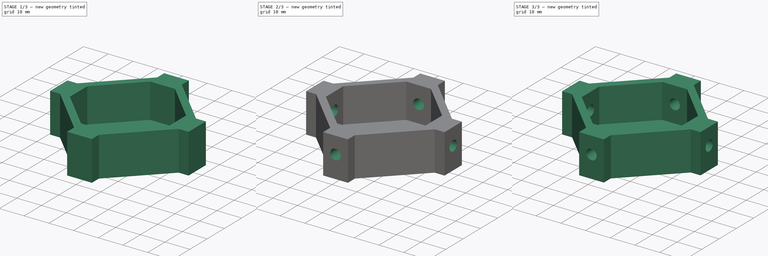
[diagram: build sequence overview — one tinted view per stage of 3, left to right]
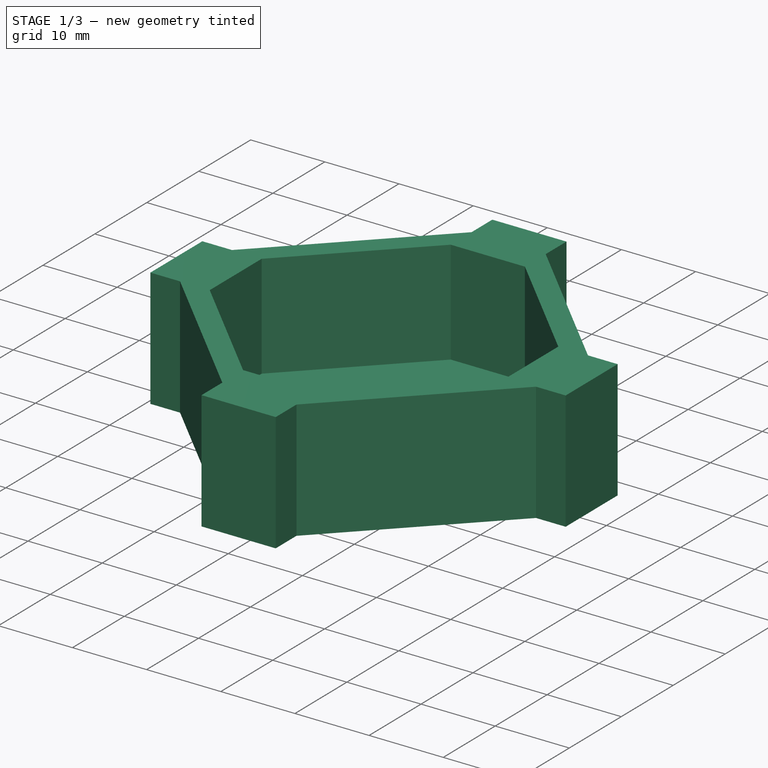
[diagram: stage 1 of 3 — iso view after this stage's code; geometry added in this stage tinted green]
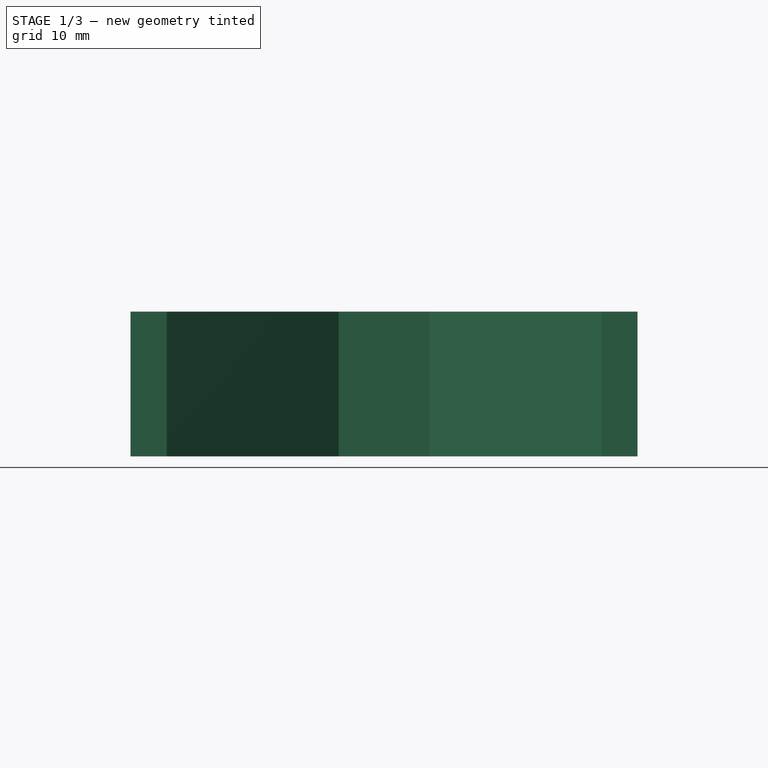
[diagram: stage 1 of 3 — front view after this stage's code; geometry added in this stage tinted green]
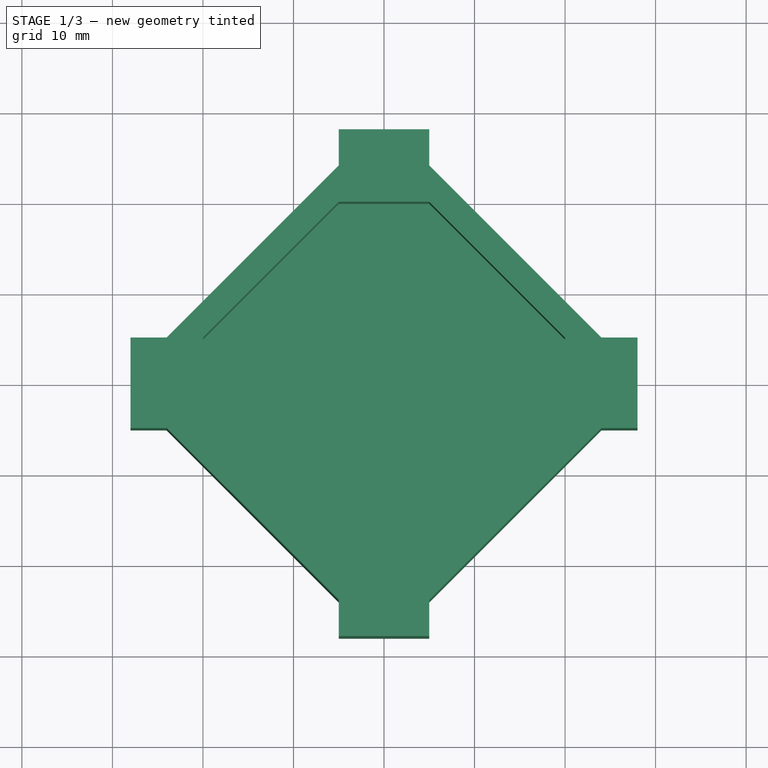
[diagram: stage 1 of 3 — top view after this stage's code; geometry added in this stage tinted green]
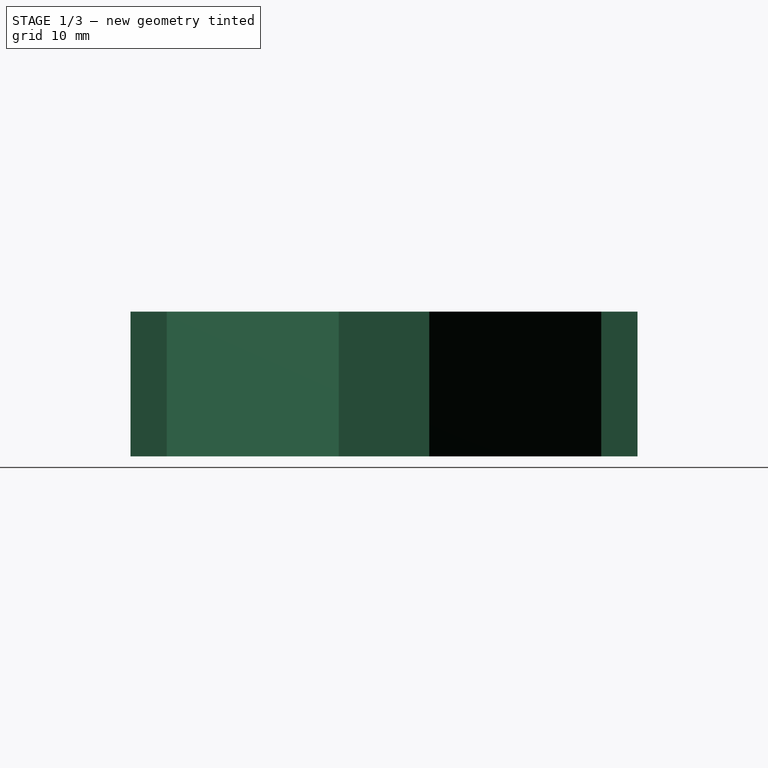
[diagram: stage 1 of 3 — right view after this stage's code; geometry added in this stage tinted green]
FCSTD DOCUMENT  (FreeCAD 0.18R16131 (Git))
Label: Turnstile_V3.3
License: All rights reserved
LicenseURL: http://en.wikipedia.org/wiki/All_rights_reserved
objects: Sketcher::SketchObject×4, PartDesign::Pocket×3, PartDesign::Fillet×3, PartDesign::Pad×1, PartDesign::Body×1, App::Part×1
note: 16 computed .brp shape members not serialized (recipe doc carries the construction recipe); baked Part::Feature solids carry a one-line shape summary decoded from their .brp

FEATURE [Sketcher::SketchObject] Sketch  label="contour"
  MapMode = 5
  Support = -> [XY_Plane001]
  sketch-geometry (16):
    g0: LineSegment StartX=-5 StartY=28 StartZ=0 EndX=5 EndY=28 EndZ=0
    g1: LineSegment StartX=28 StartY=5 StartZ=0 EndX=28 EndY=-5 EndZ=0
    g2: LineSegment StartX=5 StartY=-28 StartZ=0 EndX=-5 EndY=-28 EndZ=0
    g3: LineSegment StartX=-28 StartY=-5 StartZ=0 EndX=-28 EndY=5 EndZ=0
    g4: LineSegment StartX=-28 StartY=5 StartZ=0 EndX=-24 EndY=5 EndZ=0
    g5: LineSegment StartX=-24 StartY=5 StartZ=0 EndX=-5 EndY=24 EndZ=0
    g6: LineSegment StartX=-5 StartY=24 StartZ=0 EndX=-5 EndY=28 EndZ=0
    g7: LineSegment StartX=5 StartY=28 StartZ=0 EndX=5 EndY=24 EndZ=0
    g8: LineSegment StartX=5 StartY=24 StartZ=0 EndX=24 EndY=5 EndZ=0
    g9: LineSegment StartX=24 StartY=5 StartZ=0 EndX=28 EndY=5 EndZ=0
    g10: LineSegment StartX=-28 StartY=-5 StartZ=0 EndX=-24 EndY=-5 EndZ=0
    g11: LineSegment StartX=-24 StartY=-5 StartZ=0 EndX=-5 EndY=-24 EndZ=0
    g12: LineSegment StartX=-5 StartY=-24 StartZ=0 EndX=-5 EndY=-28 EndZ=0
    g13: LineSegment StartX=5 StartY=-28 StartZ=0 EndX=5 EndY=-24 EndZ=0
    g14: LineSegment StartX=5 StartY=-24 StartZ=0 EndX=24 EndY=-5 EndZ=0
    g15: LineSegment StartX=24 StartY=-5 StartZ=0 EndX=28 EndY=-5 EndZ=0
  constraints (44):
    c: Symmetric(g0,g0,g-2)
    c: Symmetric(g2,g2,g-2)
    c: Symmetric(g3,g3,g-1)
    c: Symmetric(g1,g1,g-1)
    c: DistanceY(g-1,g0) = 28
    c: DistanceY(g2,g-1) = 28
    c: DistanceX(g3,g-1) = 28
    c: DistanceX(g-1,g1) = 28
    c: DistanceX(g0,g0) = 10
    c: DistanceX(g2,g2) = 10
    c: DistanceY(g3,g3) = 10
    c: DistanceY(g1,g1) = 10
    c: Coincident(g4,g5)
    c: Coincident(g5,g6)
    c: Coincident(g3,g4)
    c: Coincident(g0,g6)
    c: Vertical(g6)
    c: Horizontal(g4)
    c: DistanceX(g4,g4) = 4
    c: DistanceY(g6,g6) = 4
    c: Coincident(g7,g8)
    c: Coincident(g8,g9)
    c: Coincident(g7,g0)
    c: Horizontal(g9)
    c: Vertical(g7)
    c: DistanceX(g9,g9) = 4
    c: DistanceY(g7,g7) = 4
    c: Coincident(g9,g1)
    c: Coincident(g10,g11)
    c: Coincident(g11,g12)
    c: Coincident(g10,g3)
    c: Coincident(g12,g2)
    c: Horizontal(g10)
    c: Vertical(g12)
    c: DistanceX(g10,g10) = 4
    c: DistanceY(g12,g12) = 4
    c: Coincident(g13,g14)
    c: Coincident(g14,g15)
    c: Coincident(g1,g15)
    c: Coincident(g13,g2)
    c: Vertical(g13)
    c: Horizontal(g15)
    c: DistanceX(g15,g15) = 4
    c: DistanceY(g13,g13) = 4
FEATURE [PartDesign::Pad] Pad
  Length = 16
  Length2 = 100
  Profile = -> Sketch
  Type = 0
FEATURE [Sketcher::SketchObject] Sketch001
  MapMode = 5
  Placement = pos=(0,0,16) rot=(0,0,1;0rad)
  Support = -> [Pad]
  sketch-geometry (8):
    g0: LineSegment StartX=5 StartY=20 StartZ=0 EndX=-5 EndY=20 EndZ=0
    g1: LineSegment StartX=-5 StartY=20 StartZ=0 EndX=-20 EndY=5 EndZ=0
    g2: LineSegment StartX=-20 StartY=5 StartZ=0 EndX=-20 EndY=-5 EndZ=0
    g3: LineSegment StartX=-20 StartY=-5 StartZ=0 EndX=-5 EndY=-20 EndZ=0
    g4: LineSegment StartX=-5 StartY=-20 StartZ=0 EndX=5 EndY=-20 EndZ=0
    g5: LineSegment StartX=5 StartY=-20 StartZ=0 EndX=20 EndY=-5 EndZ=0
    g6: LineSegment StartX=20 StartY=-5 StartZ=0 EndX=20 EndY=5 EndZ=0
    g7: LineSegment StartX=20 StartY=5 StartZ=0 EndX=5 EndY=20 EndZ=0
  constraints (20):
    c: Coincident(g0,g1)
    c: Coincident(g1,g2)
    c: Coincident(g2,g3)
    c: Coincident(g3,g4)
    c: Coincident(g4,g5)
    c: Coincident(g5,g6)
    c: Coincident(g6,g7)
    c: Coincident(g7,g0)
    c: Symmetric(g0,g0,g-2)
    c: Symmetric(g3,g4,g-2)
    c: Symmetric(g5,g6,g-1)
    c: Symmetric(g2,g1,g-1)
    c: DistanceY(g-1,g0) = 20
    c: DistanceY(g4,g-1) = 20
    c: DistanceY(g5,g6) = 10
    c: DistanceY(g2,g2) = 10
    c: DistanceX(g1,g-1) = 20
    c: DistanceX(g-1,g6) = 20
    c: DistanceX(g0,g0) = 10
    c: DistanceX(g4,g4) = 10
FEATURE [PartDesign::Pocket] Pocket
  BaseFeature = -> Pad
  Length = 14
  Length2 = 100
  Profile = -> Sketch001
  Type = 0
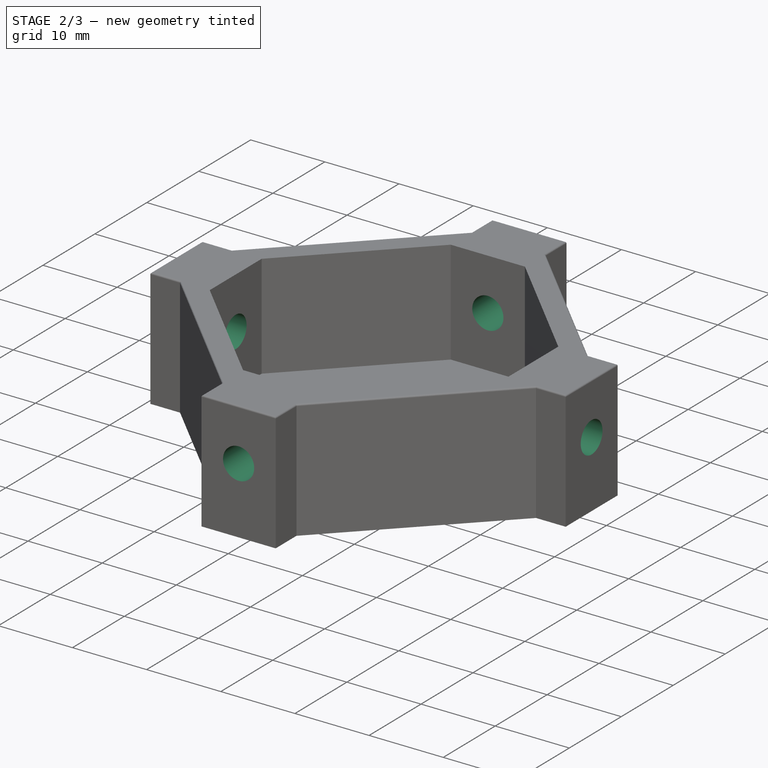
[diagram: stage 2 of 3 — iso view after this stage's code; geometry added in this stage tinted green]
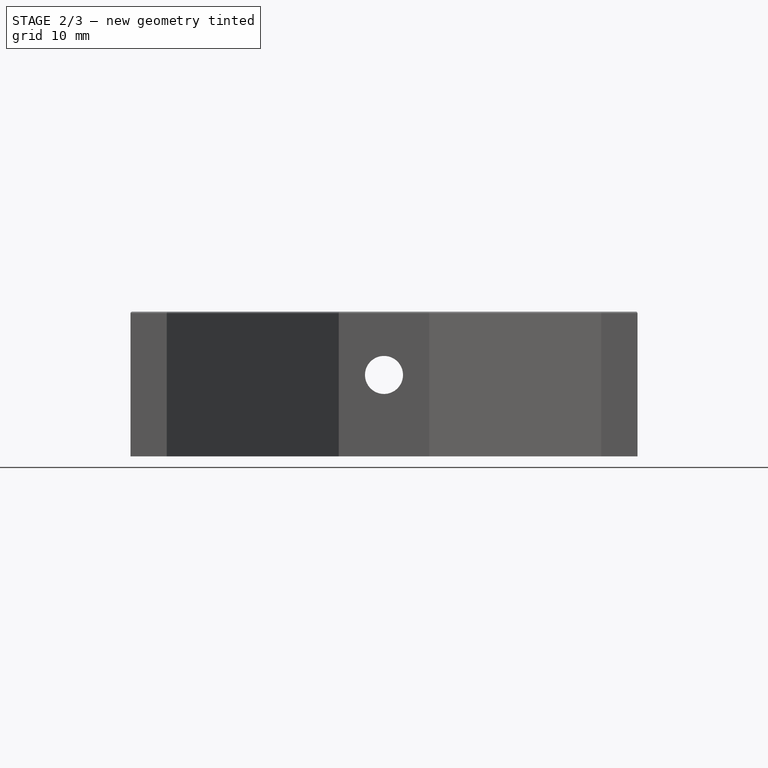
[diagram: stage 2 of 3 — front view after this stage's code; geometry added in this stage tinted green]
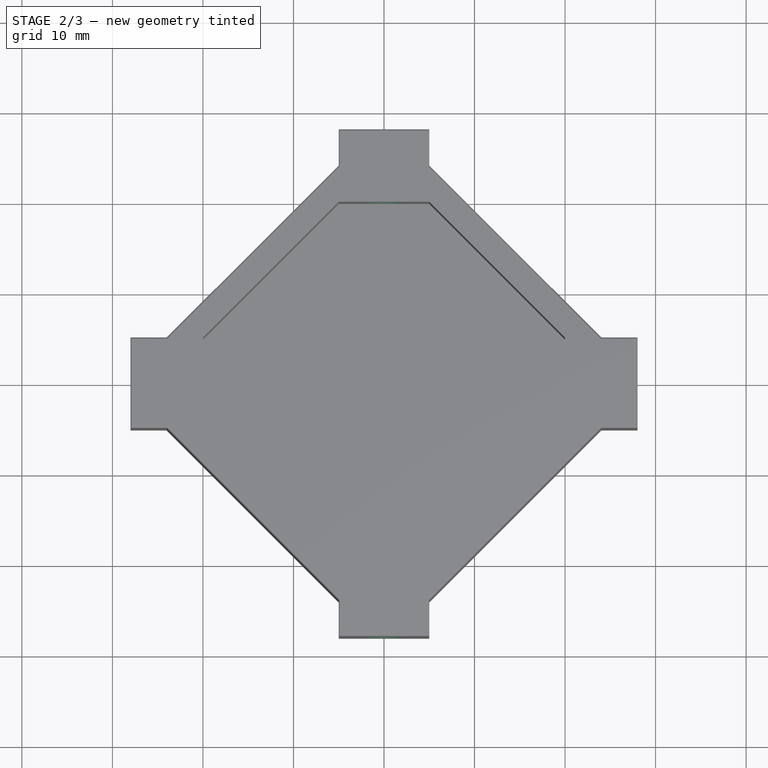
[diagram: stage 2 of 3 — top view after this stage's code; geometry added in this stage tinted green]
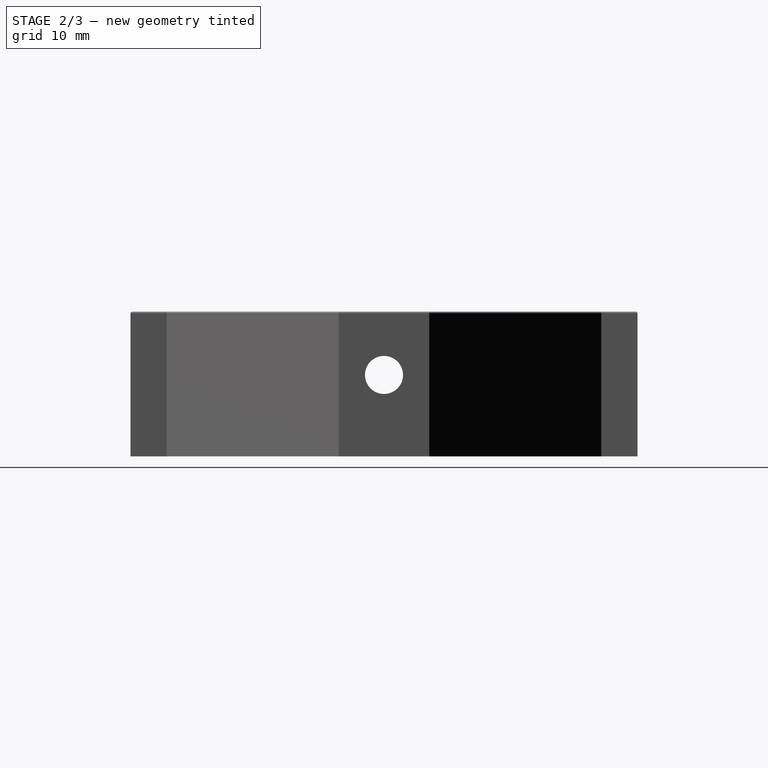
[diagram: stage 2 of 3 — right view after this stage's code; geometry added in this stage tinted green]
FEATURE [Sketcher::SketchObject] Sketch002
  MapMode = 5
  Placement = pos=(0,-28,0) rot=(1,0,0;1.5708rad)
  Support = -> [Pocket]
  sketch-geometry (2):
    g0: GeomPoint X=0 Y=9 Z=0
    g1: Circle CenterX=0 CenterY=9 CenterZ=0 NormalX=0 NormalY=0 NormalZ=1 AngleXU=0 Radius=2.1
  constraints (4):
    c: PointOnObject(g0,g-2)
    c: DistanceY(g-1,g0) = 9
    c: Coincident(g0,g1)
    c: Radius(g1) = 2.1
FEATURE [PartDesign::Pocket] Pocket001  label="Pocket Loch1"
  BaseFeature = -> Pocket
  Length = 100
  Length2 = 100
  Profile = -> Sketch002
  Type = 0
FEATURE [Sketcher::SketchObject] Sketch003
  MapMode = 5
  Placement = pos=(28,0,0) rot=(0.57735,0.57735,0.57735;2.0944rad)
  Support = -> [Pocket001]
  sketch-geometry (2):
    g0: GeomPoint X=0 Y=9 Z=0
    g1: Circle CenterX=0 CenterY=9 CenterZ=0 NormalX=0 NormalY=0 NormalZ=1 AngleXU=0 Radius=2.1
  constraints (4):
    c: PointOnObject(g0,g-2)
    c: DistanceY(g-1,g0) = 9
    c: Coincident(g1,g0)
    c: Radius(g1) = 2.1
FEATURE [PartDesign::Pocket] Pocket002  label="Pocket Loch2"
  BaseFeature = -> Pocket001
  Length = 100
  Length2 = 100
  Profile = -> Sketch003
  Type = 0
FEATURE [PartDesign::Fillet] Fillet
  Base = -> Pocket002 [Edge36,Edge35,Edge33,Edge34,Edge32,Edge30,Edge28,Edge26,Edge24,Edge8,Edge3,Edge23,Edge25,Edge27,Edge29,Edge31]
  BaseFeature = -> Pocket002
  Radius = 0.2
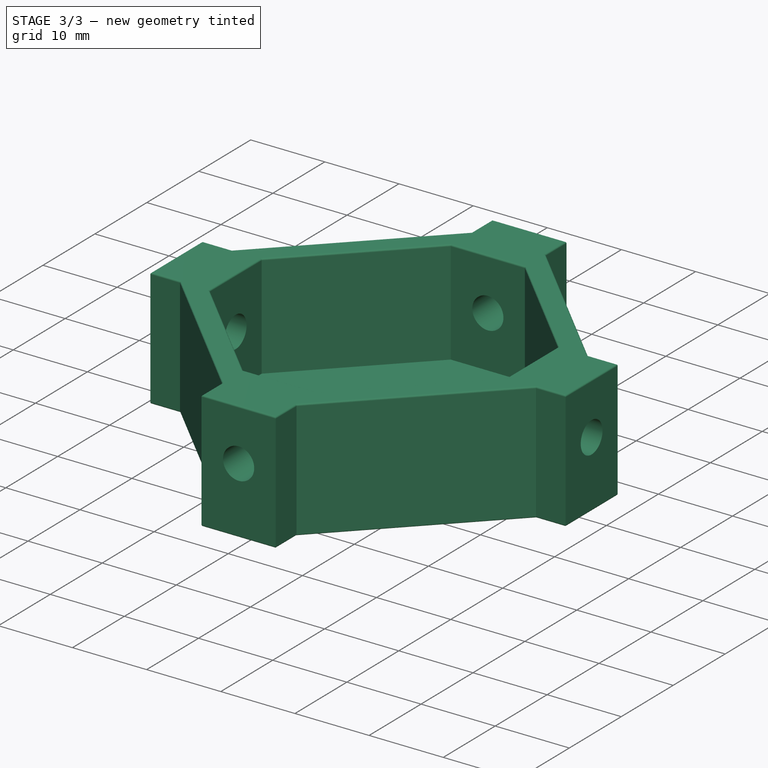
[diagram: stage 3 of 3 — iso view after this stage's code; geometry added in this stage tinted green]
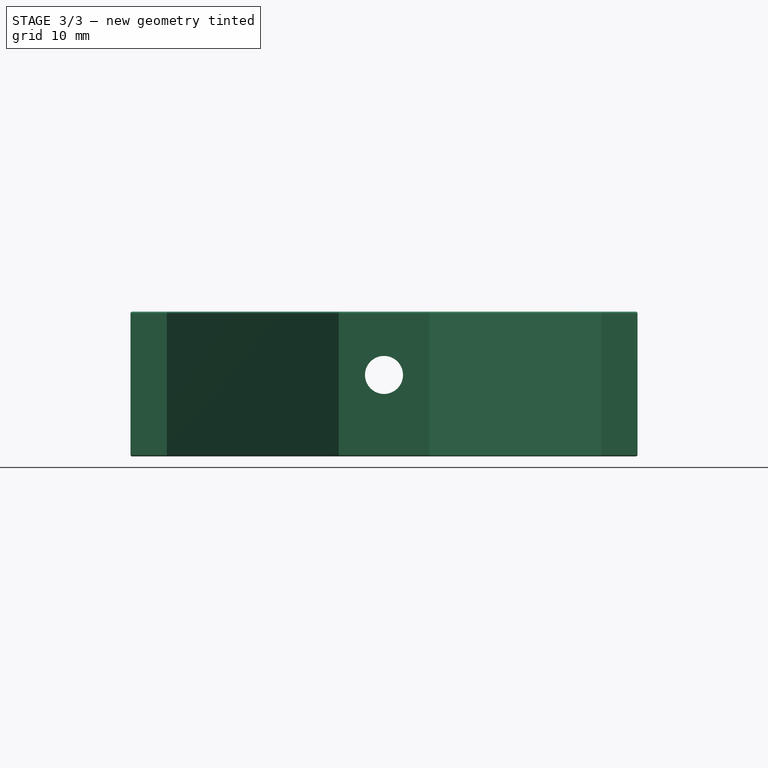
[diagram: stage 3 of 3 — front view after this stage's code; geometry added in this stage tinted green]
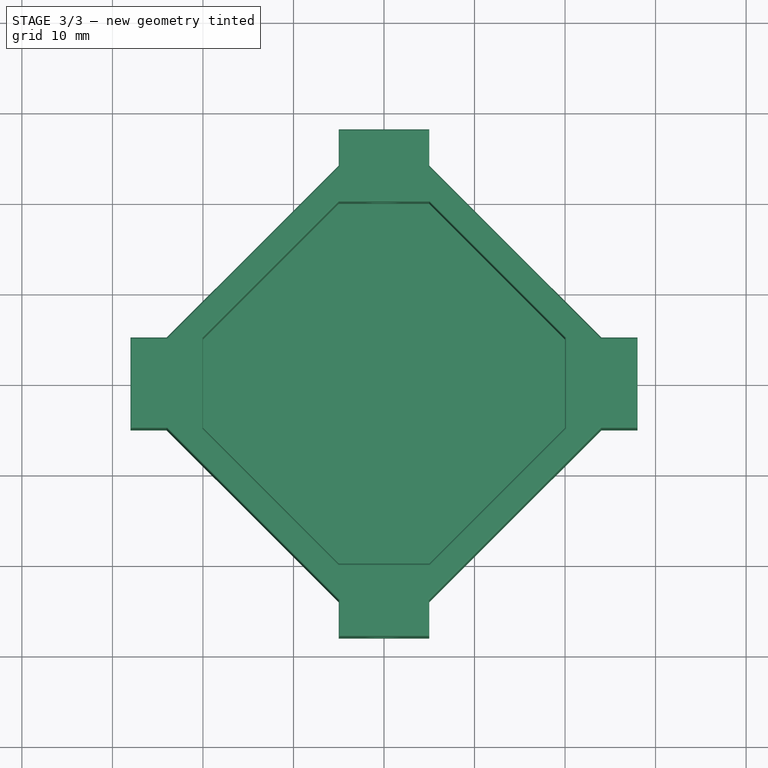
[diagram: stage 3 of 3 — top view after this stage's code; geometry added in this stage tinted green]
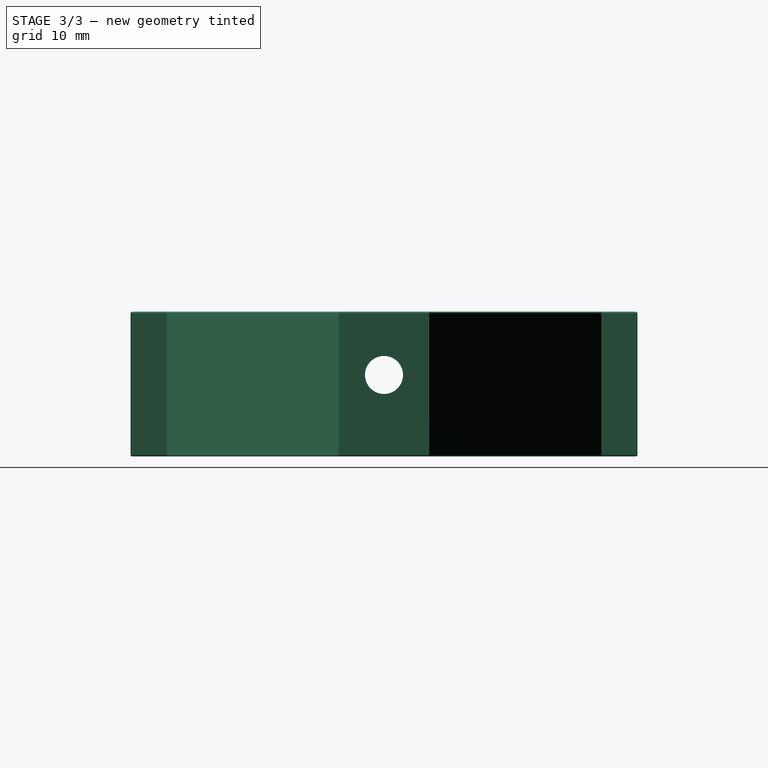
[diagram: stage 3 of 3 — right view after this stage's code; geometry added in this stage tinted green]
FEATURE [PartDesign::Fillet] Fillet001
  Base = -> Fillet [Edge48,Edge49,Edge50,Edge51,Edge52,Edge53,Edge54,Edge55]
  BaseFeature = -> Fillet
  Radius = 0.2
FEATURE [PartDesign::Fillet] Fillet002
  Base = -> Fillet001 [Edge110,Edge120,Edge116,Edge106,Edge102,Edge98,Edge94,Edge100,Edge104,Edge108,Edge112,Edge118,Edge122,Edge126,Edge127,Edge124]
  BaseFeature = -> Fillet001
  Radius = 0.2
FEATURE [PartDesign::Body] Body
  Group = -> [Sketch,Pad,Sketch001,Pocket,Sketch002,Pocket001,Sketch003,Pocket002,Fillet,Fillet001,Fillet002]
  Origin = -> Origin001
  Tip = -> Fillet002
FEATURE [App::Part] Part
  Group = -> [Body]
  Origin = -> Origin
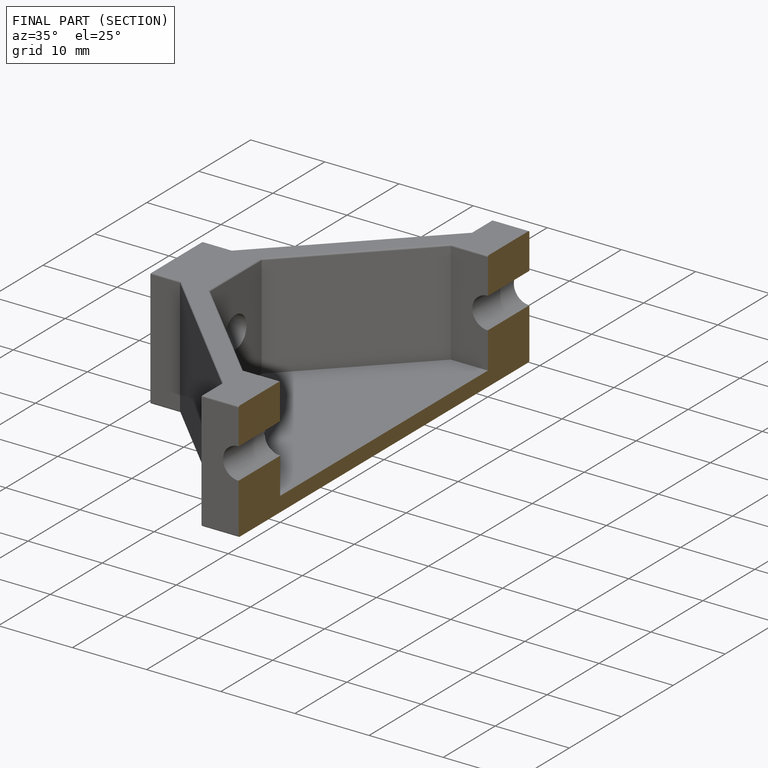
[diagram: finished part — half-section view (interior)]
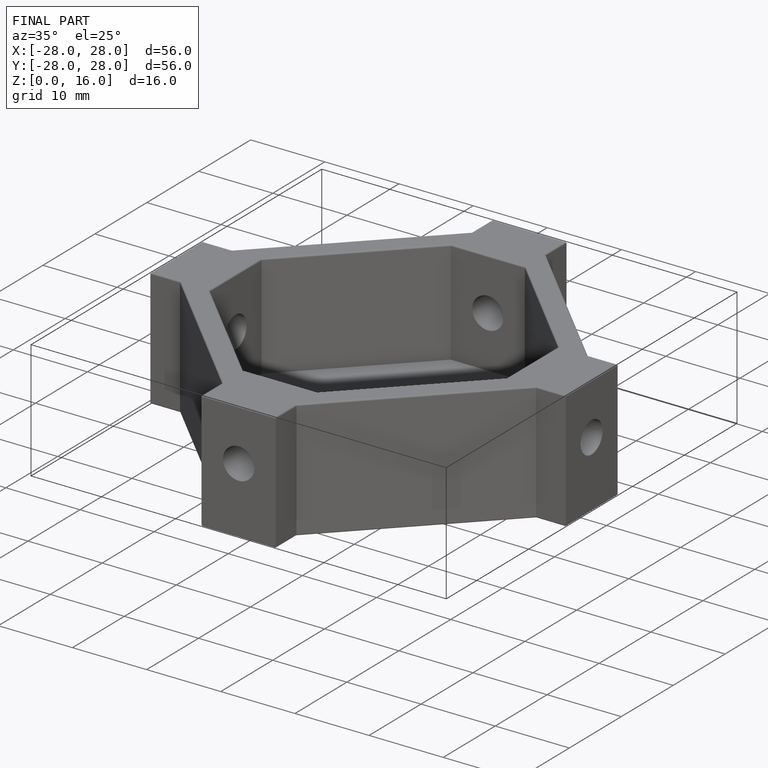
[diagram: finished part — iso view with bounding-box wireframe]
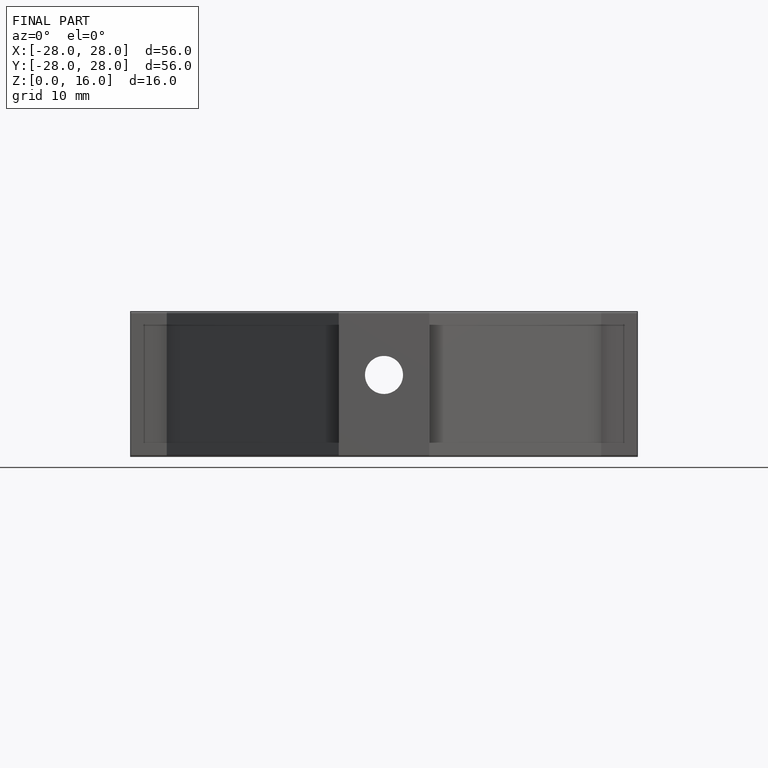
[diagram: finished part — front view with bounding-box wireframe]
